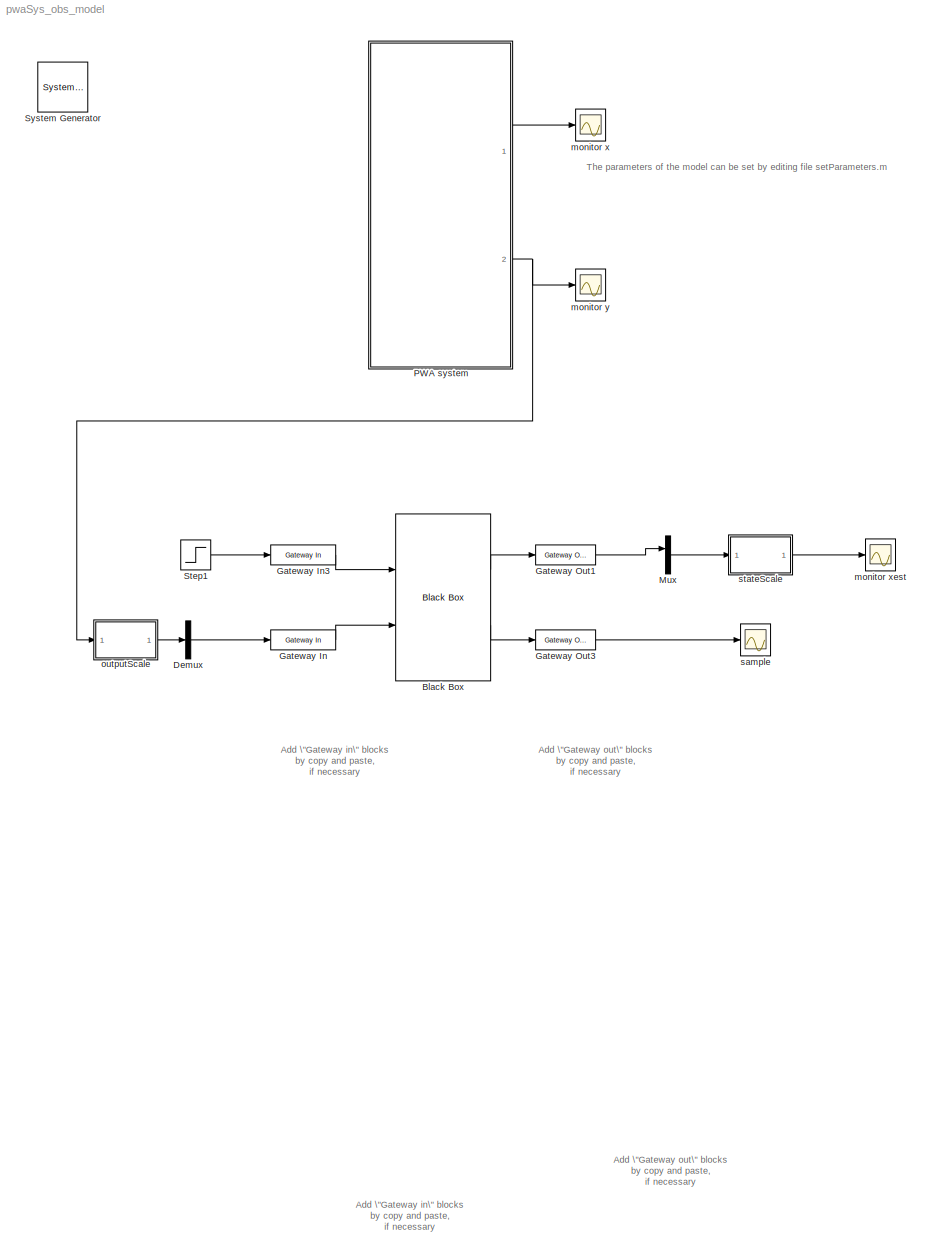
MODEL pwaSys_obs_model
KIND model
CONFIG InitFcn = load simulink.mat\nsetParameters
CONFIG StartFcn = load simulink.mat\nsetParameters\nclear res_X res_U res_Y res_P res_D\nclear res_Xest res_Dest res_Yest
CONFIG StopFcn = plotScope
BLOCK [Reference]  System Generator  REF=xbsIndex_r4/ System Generator
  AttributesFormatString = System\\nGenerator
  Impl_file = Vivado Implementation Defaults
  Ports = []
  SID = 113
  SourceBlock = xbsIndex_r4/ System Generator
  SourceType = Xilinx System Generator Block
  Synth_file = Vivado Synthesis Defaults
  Tag = genX
  UserData = DataTag0
  UserDataPersistent = on
  block_type = sysgen
  clock_wrapper = Clock Enables
  core_generation = According to Block Masks
  dbl_ovrd = According to Block Masks
  dcm_input_clock_period = 10
  deprecated_control = off
  directory = ./netlist
  eval_field = 0
  has_advanced_control = 0
  incr_netlist = off
  infoedit = System Generator
  package = fbg676
  part = xc7k325t
  proj_type = Vivado
  run_coregen = off
  sg_icon_stat = 50,50,0,0,token,white,0,58c5b5770fe5f7c311f53dbc6e73f0f6,right,,[ ],[ ]
  sg_mask_display = fprintf('','COMMENT: begin icon graphics');\npatch([0 50 50 0 0 ],[0 0 50 50 0 ],[1 1 1 ]);\npatch([1.6375 16.81 27.31 37.81 48.31 27.31 12.1375 1.6375 ],[36.655 36.655 47.155 36.655 47.155 47.155 47.155 36.655 ],[0.933333 0.203922 0.141176 ]);\npatch([12.1375 27.31 16.81 1.6375 12.1375 ],[26.155 26.155 36.655 36.655 26.155 ],[0.698039 0.0313725 0.219608 ]);\npatch([1.6375 16.81 27.31 12.1375 1.63...<+337ch>
  sggui_pos = 326,312,454,398
  simulink_period = clk_period
  speed = -3
  synthesis_tool = Vivado
  sysclk_period = 10
  testbench = off
  trim_vbits = Everywhere in SubSystem
  xilinxfamily = kintex7
BLOCK [Reference] Black Box  REF=xbsIndex_r4/Black Box
  Ports = [2, 2]
  SID = 59
  SourceBlock = xbsIndex_r4/Black Box
  SourceType = Xilinx Black Box Block
  block_type = blackbox2
  has_advanced_control = 0
  infoedit = Incorporates black box HDL and simulation model into a System Generator design.<br><br>You must supply a Black Box with certain information about the HDL component you would like to bring into System Generator. This information is provided through a Matlab function.<br><br>When \"Simulation mode\" is set to \"Inactive\", you will typically want to provide a separate simulation model by using a Sim...<+134ch>
  init_code = embeddedSystem_config
  sg_icon_stat = 95,167,2,2,white,blue,0,54f1e119,right,,[ ],[ ]
  sg_mask_display = fprintf('','COMMENT: begin icon graphics');\npatch([0 95 95 0 0 ],[0 0 167 167 0 ],[0.77 0.82 0.91 ]);\nplot([0 95 95 0 0 ],[0 0 167 167 0 ]);\npatch([18.075 36.86 49.86 62.86 75.86 49.86 31.075 18.075 ],[97.43 97.43 110.43 97.43 110.43 110.43 110.43 97.43 ],[1 1 1 ]);\npatch([31.075 49.86 36.86 18.075 31.075 ],[84.43 84.43 97.43 97.43 84.43 ],[0.931 0.946 0.973 ]);\npatch([18.075 36.86 49.86 31.0...<+486ch>
  sggui_pos = -10,14,403,439
  sim_method = ISE Simulator
  verbose = off
  xl_area = [0,0,0,0,0,0,0]
  xl_use_area = off
BLOCK [Demux] Demux
  DisplayOption = bar
  Outputs = sim_ny
  Ports = [1, 1]
  SID = 60
BLOCK [Reference] Gateway In  REF=xbsIndex_r4/Gateway In
  ADCChannel = '1'
  LOCs = {}
  Ports = [1, 1]
  SID = 63
  SourceBlock = xbsIndex_r4/Gateway In
  SourceType = Xilinx Gateway In Block
  UseAsADC = off
  address_offset = hex2dec('00')
  arith_type = Unsigned
  automatic_assignment = on
  bin_pt = 0
  block_type = gatewayin
  columns = 1
  dbl_ovrd = off
  exp_width = 8
  frac_width = 24
  gui_display_data_type = Fixed-point
  has_advanced_control = 0
  hdl_port = on
  infoedit = Gateway in block.  Converts inputs of type Simulink integer, single, double and fixed-point to  Xilinx fixed-point or floating-point data type.<br><br>Hardware notes:  In hardware these blocks become top level input ports.
  inherit_from_input = off
  interface = None
  intf_description = ''
  intf_name = ''
  io_standard = {}
  locs_specified = off
  n_bits = sim_n_bit_in
  overflow = Saturate
  period = clk_period
  preci_type = Single
  quantization = Round  (unbiased: +/- Inf)
  rows = 1
  sg_icon_stat = 65,20,1,1,white,yellow,1,00d3666e,right,,[ ],[ ]
  sg_mask_display = fprintf('','COMMENT: begin icon graphics');\npatch([0 65 65 0 0 ],[0 0 20 20 0 ],[0.95 0.93 0.65 ]);\nplot([0 65 65 0 0 ],[0 0 20 20 0 ]);\npatch([27.55 30.44 32.44 34.44 36.44 32.44 29.55 27.55 ],[12.22 12.22 14.22 12.22 14.22 14.22 14.22 12.22 ],[1 1 1 ]);\npatch([29.55 32.44 30.44 27.55 29.55 ],[10.22 10.22 12.22 12.22 10.22 ],[0.985 0.979 0.895 ]);\npatch([27.55 30.44 32.44 29.55 27.55 ],[8.22...<+396ch>
  sggui_pos = -10,14,388,698
  timing_constraint = None
  xl_area = [0,0,0,0,0,0,0]
  xl_use_area = off
BLOCK [Reference] Gateway In3  REF=xbsIndex_r4/Gateway In
  ADCChannel = '1'
  LOCs = {}
  Ports = [1, 1]
  SID = 66
  SourceBlock = xbsIndex_r4/Gateway In
  SourceType = Xilinx Gateway In Block
  UseAsADC = off
  address_offset = hex2dec('00')
  arith_type = Boolean
  automatic_assignment = on
  bin_pt = 14
  block_type = gatewayin
  columns = 1
  dbl_ovrd = off
  exp_width = 8
  frac_width = 24
  gui_display_data_type = Boolean
  has_advanced_control = 0
  hdl_port = on
  infoedit = Gateway in block.  Converts inputs of type Simulink integer, single, double and fixed-point to  Xilinx fixed-point or floating-point data type.<br><br>Hardware notes:  In hardware these blocks become top level input ports.
  inherit_from_input = off
  interface = None
  intf_description = ''
  intf_name = ''
  io_standard = {}
  locs_specified = off
  n_bits = 16
  overflow = Saturate
  period = clk_period
  preci_type = Single
  quantization = Round  (unbiased: +/- Inf)
  rows = 1
  sg_icon_stat = 65,20,1,1,white,yellow,1,00d3666e,right,,[ ],[ ]
  sg_mask_display = fprintf('','COMMENT: begin icon graphics');\npatch([0 65 65 0 0 ],[0 0 20 20 0 ],[0.95 0.93 0.65 ]);\nplot([0 65 65 0 0 ],[0 0 20 20 0 ]);\npatch([27.55 30.44 32.44 34.44 36.44 32.44 29.55 27.55 ],[12.22 12.22 14.22 12.22 14.22 14.22 14.22 12.22 ],[1 1 1 ]);\npatch([29.55 32.44 30.44 27.55 29.55 ],[10.22 10.22 12.22 12.22 10.22 ],[0.985 0.979 0.895 ]);\npatch([27.55 30.44 32.44 29.55 27.55 ],[8.22...<+396ch>
  sggui_pos = -10,14,388,698
  timing_constraint = None
  xl_area = [0,0,0,0,0,0,0]
  xl_use_area = off
BLOCK [Reference] Gateway Out1  REF=xbsIndex_r4/Gateway Out
  DACChannel = '1'
  LOCs = {}
  Ports = [1, 1]
  SID = 68
  SourceBlock = xbsIndex_r4/Gateway Out
  SourceType = Xilinx Gateway Out Block
  UseAsDAC = off
  address_offset = hex2dec('00')
  automatic_assignment = on
  block_type = gatewayout
  columns = 1
  has_advanced_control = 0
  hdl_port = on
  infoedit = Gateway out block.  Converts Xilinx fixed-point or floating-point type inputs into ouputs of type Simulink integer, single, double, or fixed-point.<br><br>Hardware notes:  In hardware these blocks become top level output ports or are discarded, depending on how they are configured.
  inherit_from_input = off
  interface = None
  intf_description = ''
  intf_name = ''
  io_standard = {}
  locs_specified = off
  rows = 1
  sg_icon_stat = 60,20,1,1,white,yellow,1,cc31b7ac,right,,[ ],[ ]
  sg_mask_display = fprintf('','COMMENT: begin icon graphics');\npatch([0 60 60 0 0 ],[0 0 20 20 0 ],[0.95 0.93 0.65 ]);\nplot([0 60 60 0 0 ],[0 0 20 20 0 ]);\npatch([25.55 28.44 30.44 32.44 34.44 30.44 27.55 25.55 ],[12.22 12.22 14.22 12.22 14.22 14.22 14.22 12.22 ],[1 1 1 ]);\npatch([27.55 30.44 28.44 25.55 27.55 ],[10.22 10.22 12.22 12.22 10.22 ],[0.985 0.979 0.895 ]);\npatch([25.55 28.44 30.44 27.55 25.55 ],[8.22...<+397ch>
  sggui_pos = -10,14,410,600
  timing_constraint = None
  xl_area = [0,0,0,0,0,0,0]
  xl_use_area = off
BLOCK [Reference] Gateway Out3  REF=xbsIndex_r4/Gateway Out
  DACChannel = '1'
  LOCs = {}
  Ports = [1, 1]
  SID = 70
  SourceBlock = xbsIndex_r4/Gateway Out
  SourceType = Xilinx Gateway Out Block
  UseAsDAC = off
  address_offset = hex2dec('00')
  automatic_assignment = on
  block_type = gatewayout
  columns = 1
  has_advanced_control = 0
  hdl_port = on
  infoedit = Gateway out block.  Converts Xilinx fixed-point or floating-point type inputs into ouputs of type Simulink integer, single, double, or fixed-point.<br><br>Hardware notes:  In hardware these blocks become top level output ports or are discarded, depending on how they are configured.
  inherit_from_input = off
  interface = None
  intf_description = ''
  intf_name = ''
  io_standard = {}
  locs_specified = off
  rows = 1
  sg_icon_stat = 60,20,1,1,white,yellow,1,cc31b7ac,right,,[ ],[ ]
  sg_mask_display = fprintf('','COMMENT: begin icon graphics');\npatch([0 60 60 0 0 ],[0 0 20 20 0 ],[0.95 0.93 0.65 ]);\nplot([0 60 60 0 0 ],[0 0 20 20 0 ]);\npatch([25.55 28.44 30.44 32.44 34.44 30.44 27.55 25.55 ],[12.22 12.22 14.22 12.22 14.22 14.22 14.22 12.22 ],[1 1 1 ]);\npatch([27.55 30.44 28.44 25.55 27.55 ],[10.22 10.22 12.22 12.22 10.22 ],[0.985 0.979 0.895 ]);\npatch([25.55 28.44 30.44 27.55 25.55 ],[8.22...<+397ch>
  sggui_pos = 0,24,410,600
  timing_constraint = None
  xl_area = [0,0,0,0,0,0,0]
  xl_use_area = off
BLOCK [Mux] Mux
  DisplayOption = bar
  Inputs = sim_nx
  Ports = [2, 1]
  SID = 71
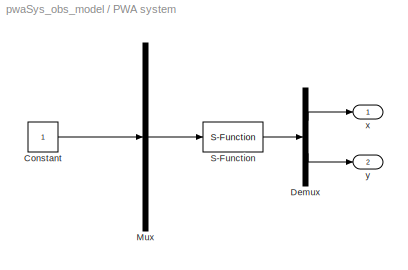
BLOCK [SubSystem] PWA system
  Ports = [0, 2]
  RequestExecContextInheritance = off
  SID = 5
  Variant = off
BLOCK [Constant] PWA system/Constant
  SID = 26
BLOCK [Demux] PWA system/Demux
  DisplayOption = bar
  Outputs = [sim_nx sim_ny]
  Ports = [1, 2]
  SID = 19
BLOCK [Mux] PWA system/Mux
  DisplayOption = bar
  Inputs = 1
  Ports = [1, 1]
  SID = 20
BLOCK [S-Function] PWA system/S-Function
  EnableBusSupport = off
  FunctionName = s_pwaSys_d
  Parameters = A,B,C,D,H,K,sim_x0,Ts
  Ports = [1, 1]
  SFunctionDeploymentMode = off
  SID = 117
BLOCK [Outport] PWA system/x
  IconDisplay = Port number
  SID = 7
BLOCK [Outport] PWA system/y
  IconDisplay = Port number
  Port = 2
  SID = 10
BLOCK [Step] Step1
  SID = 72
  SampleTime = 0
  Time = 0.5
BLOCK [Scope] monitor x
  Ports = [1]
  SID = 16
  ScopeSpecificationString = C++SS(StrPVP('Location','[188, 364, 512, 603]'),StrPVP('Open','off'),MxPVP('AxesTitles',24,'struct(''axes1'',''%<SignalLabel>'')'),MxPVP('ScopeGraphics',28,'struct(''FigureColor'',''[0.5 0.5 0.5]'',''AxesColor'',''[0 0 0]'',''AxesTickColor'',''[1 1 1]'',''LineColors'',''[1 1 0;1 0 1;0 1 1;1 0 0;0 1 0;0 0 1]'',''LineStyles'',''-|-|-|-|-|-'',''LineWidths'',''[0.5 0.5 0.5 0.5 0.5 0.5]'',''MarkerStyle...<+263ch>
BLOCK [Scope] monitor xest
  Ports = [1]
  SID = 44
  ScopeSpecificationString = C++SS(StrPVP('Location','[188, 364, 512, 603]'),StrPVP('Open','off'),MxPVP('AxesTitles',24,'struct(''axes1'',''%<SignalLabel>'')'),MxPVP('ScopeGraphics',28,'struct(''FigureColor'',''[0.5 0.5 0.5]'',''AxesColor'',''[0 0 0]'',''AxesTickColor'',''[1 1 1]'',''LineColors'',''[1 1 0;1 0 1;0 1 1;1 0 0;0 1 0;0 0 1]'',''LineStyles'',''-|-|-|-|-|-'',''LineWidths'',''[0.5 0.5 0.5 0.5 0.5 0.5]'',''MarkerStyle...<+266ch>
BLOCK [Scope] monitor y
  Ports = [1]
  SID = 17
  ScopeSpecificationString = C++SS(StrPVP('Location','[188, 365, 502, 602]'),StrPVP('Open','off'),MxPVP('AxesTitles',24,'struct(''axes1'',''%<SignalLabel>'')'),MxPVP('ScopeGraphics',28,'struct(''FigureColor'',''[0.5 0.5 0.5]'',''AxesColor'',''[0 0 0]'',''AxesTickColor'',''[1 1 1]'',''LineColors'',''[1 1 0;1 0 1;0 1 1;1 0 0;0 1 0;0 0 1]'',''LineStyles'',''-|-|-|-|-|-'',''LineWidths'',''[0.5 0.5 0.5 0.5 0.5 0.5]'',''MarkerStyle...<+263ch>
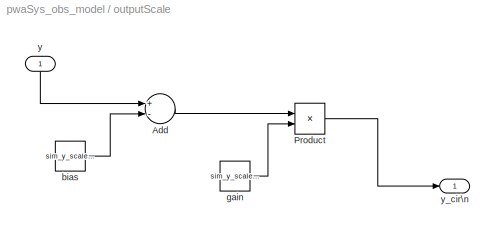
BLOCK [SubSystem] outputScale
  Ports = [1, 1]
  RequestExecContextInheritance = off
  SID = 106
  Variant = off
BLOCK [Sum] outputScale/Add
  InputSameDT = off
  Inputs = +-
  OutDataTypeStr = Inherit: Inherit via internal rule
  Ports = [2, 1]
  SID = 108
  SaturateOnIntegerOverflow = off
BLOCK [Product] outputScale/Product
  InputSameDT = off
  OutDataTypeStr = Inherit: Inherit via internal rule
  Ports = [2, 1]
  RndMeth = Floor
  SID = 109
  SaturateOnIntegerOverflow = off
BLOCK [Constant] outputScale/bias
  SID = 110
  Value = sim_y_scale_bias
BLOCK [Constant] outputScale/gain
  SID = 111
  Value = sim_y_scale_gain
BLOCK [Inport] outputScale/y
  IconDisplay = Port number
  SID = 107
BLOCK [Outport] outputScale/y_cir\n
  IconDisplay = Port number
  SID = 112
BLOCK [Scope] sample
  Ports = [1]
  SID = 96
  ScopeSpecificationString = C++SS(StrPVP('SaveName','ScopeData'),StrPVP('LimitDataPoints','on'),StrPVP('DataFormat','Array'),StrPVP('Decimation','1'),StrPVP('BlockParamSampleInput','off'),StrPVP('SaveName','ScopeData'),StrPVP('SaveName','ScopeData'),StrPVP('SaveName','ScopeData'),StrPVP('SaveName','ScopeData'))
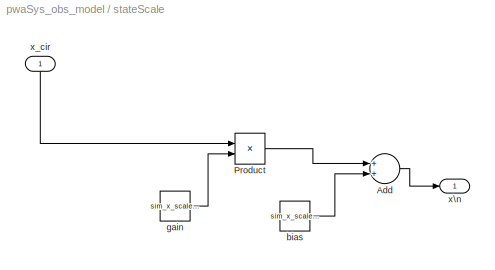
BLOCK [SubSystem] stateScale
  Ports = [1, 1]
  RequestExecContextInheritance = off
  SID = 97
  Variant = off
BLOCK [Sum] stateScale/Add
  InputSameDT = off
  OutDataTypeStr = Inherit: Inherit via internal rule
  Ports = [2, 1]
  SID = 99
  SaturateOnIntegerOverflow = off
BLOCK [Product] stateScale/Product
  InputSameDT = off
  OutDataTypeStr = Inherit: Inherit via internal rule
  Ports = [2, 1]
  RndMeth = Floor
  SID = 100
  SaturateOnIntegerOverflow = off
BLOCK [Constant] stateScale/bias
  SID = 101
  Value = sim_x_scale_bias
BLOCK [Constant] stateScale/gain
  SID = 102
  Value = sim_x_scale_gain
BLOCK [Outport] stateScale/x\n
  IconDisplay = Port number
  SID = 103
BLOCK [Inport] stateScale/x_cir
  IconDisplay = Port number
  SID = 98
ANNOTATION (root): \n \n
ANNOTATION (root): \n \n The parameters of the model can be set by editing file setParameters.m \n \n The simulation results are also saved in MATLAB workspace as variables \n res_X, res_Y, res_Xest and res_Yest and automatically plotted
ANNOTATION (root): Add \"Gateway in\" blocks \nby copy and paste,\nif necessary
ANNOTATION (root): Add \"Gateway out\" blocks \nby copy and paste,\nif necessary
LINE Black Box:1 -> Gateway Out1:1
LINE Black Box:2 -> Gateway Out3:1
LINE Demux:1 -> Gateway In:1
LINE Gateway In3:1 -> Black Box:1
LINE Gateway In:1 -> Black Box:2
LINE Gateway Out1:1 -> Mux:1
LINE Gateway Out3:1 -> sample:1
LINE Mux:1 -> stateScale:1
LINE PWA system/Constant:1 -> PWA system/Mux:1
LINE PWA system/Demux:1 -> PWA system/x:1
LINE PWA system/Demux:2 -> PWA system/y:1
LINE PWA system/Mux:1 -> PWA system/S-Function:1
LINE PWA system/S-Function:1 -> PWA system/Demux:1
LINE PWA system:1 -> monitor x:1
NET PWA system:2 -> monitor y:1, outputScale:1
LINE Step1:1 -> Gateway In3:1
LINE outputScale/Add:1 -> outputScale/Product:1
LINE outputScale/Product:1 -> outputScale/y_cir\n:1
LINE outputScale/bias:1 -> outputScale/Add:2
LINE outputScale/gain:1 -> outputScale/Product:2
LINE outputScale/y:1 -> outputScale/Add:1
LINE outputScale:1 -> Demux:1
LINE stateScale/Add:1 -> stateScale/x\n:1
LINE stateScale/Product:1 -> stateScale/Add:1
LINE stateScale/bias:1 -> stateScale/Add:2
LINE stateScale/gain:1 -> stateScale/Product:2
LINE stateScale/x_cir:1 -> stateScale/Product:1
LINE stateScale:1 -> monitor xest:1
note: NET lines group one-source signal fan-out (src -> all destinations, sorted); 1:1 wires keep LINE
